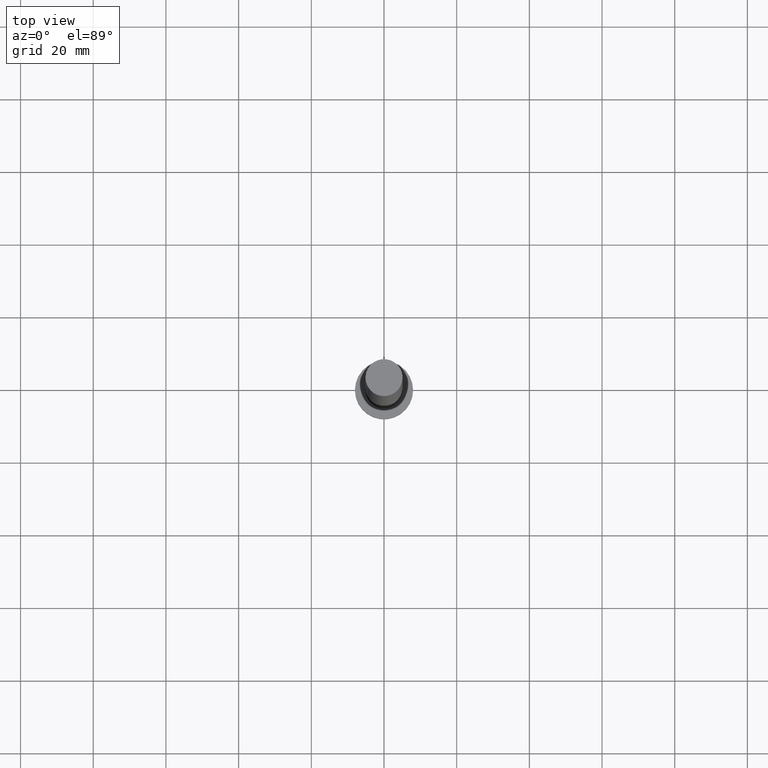
[diagram: clean part render]
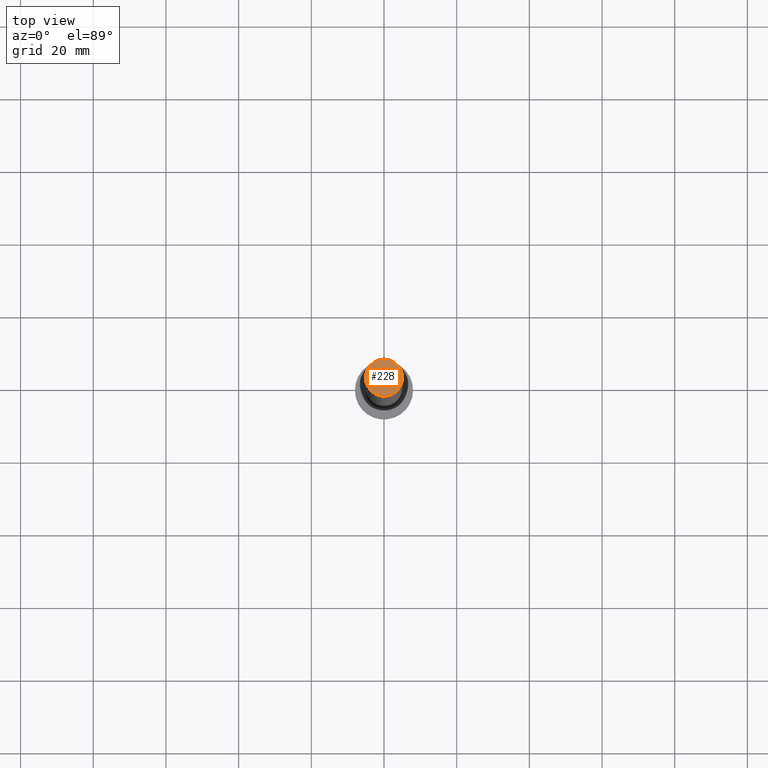
[diagram: same view with one face highlighted and labeled with its STEP entity id]
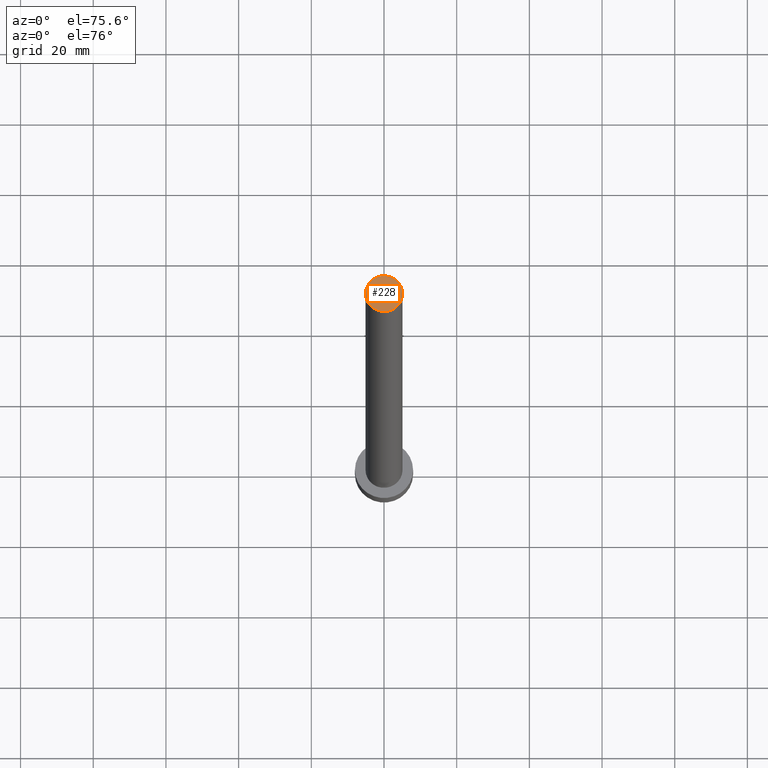
[diagram: same view with one face highlighted and labeled with its STEP entity id]
A machine part, top view. The second image highlights one B-rep face of the part: STEP entity #228.
A second angle (auxiliary view) of the same face is appended — the face is thin or edge-on in the first view.
In plain terms, the highlighted planar face has unit normal (0, 0, 1).
Its self-contained STEP definition (entity closure, byte-faithful):
#1 = AXIS2_PLACEMENT_3D ( 'NONE', #143, #224, #202 ) ;
#14 = VERTEX_POINT ( 'NONE', #24 ) ;
#24 = CARTESIAN_POINT ( 'NONE',  ( -5.100000000000001421, 0.000000000000000000, 200.0000000000000000 ) ) ;
#27 = CIRCLE ( 'NONE', #177, 5.100000000000001421 ) ;
#36 = EDGE_CURVE ( 'NONE', #89, #14, #27, .T. ) ;
#55 = DIRECTION ( 'NONE',  ( 1.000000000000000000, 0.000000000000000000, -0.000000000000000000 ) ) ;
#89 = VERTEX_POINT ( 'NONE', #109 ) ;
#97 = ORIENTED_EDGE ( 'NONE', *, *, #179, .T. ) ;
#98 = CIRCLE ( 'NONE', #1, 5.100000000000001421 ) ;
#109 = CARTESIAN_POINT ( 'NONE',  ( 5.100000000000001421, 6.245698675651502811E-16, 200.0000000000000000 ) ) ;
#112 = CARTESIAN_POINT ( 'NONE',  ( 0.000000000000000000, 0.000000000000000000, 200.0000000000000000 ) ) ;
#121 = CARTESIAN_POINT ( 'NONE',  ( 0.000000000000000000, 0.000000000000000000, 200.0000000000000000 ) ) ;
#125 = DIRECTION ( 'NONE',  ( 1.000000000000000000, 0.000000000000000000, 0.000000000000000000 ) ) ;
#127 = AXIS2_PLACEMENT_3D ( 'NONE', #112, #180, #55 ) ;
#130 = ORIENTED_EDGE ( 'NONE', *, *, #36, .T. ) ;
#140 = PLANE ( 'NONE',  #127 ) ;
#142 = EDGE_LOOP ( 'NONE', ( #97, #130 ) ) ;
#143 = CARTESIAN_POINT ( 'NONE',  ( 0.000000000000000000, 0.000000000000000000, 200.0000000000000000 ) ) ;
#177 = AXIS2_PLACEMENT_3D ( 'NONE', #121, #207, #125 ) ;
#179 = EDGE_CURVE ( 'NONE', #14, #89, #98, .T. ) ;
#180 = DIRECTION ( 'NONE',  ( 0.000000000000000000, 0.000000000000000000, 1.000000000000000000 ) ) ;
#202 = DIRECTION ( 'NONE',  ( 1.000000000000000000, 0.000000000000000000, 0.000000000000000000 ) ) ;
#207 = DIRECTION ( 'NONE',  ( 0.000000000000000000, 0.000000000000000000, 1.000000000000000000 ) ) ;
#224 = DIRECTION ( 'NONE',  ( 0.000000000000000000, 0.000000000000000000, 1.000000000000000000 ) ) ;
#228 = ADVANCED_FACE ( 'NONE', ( #234 ), #140, .T. ) ;
#234 = FACE_OUTER_BOUND ( 'NONE', #142, .T. ) ;